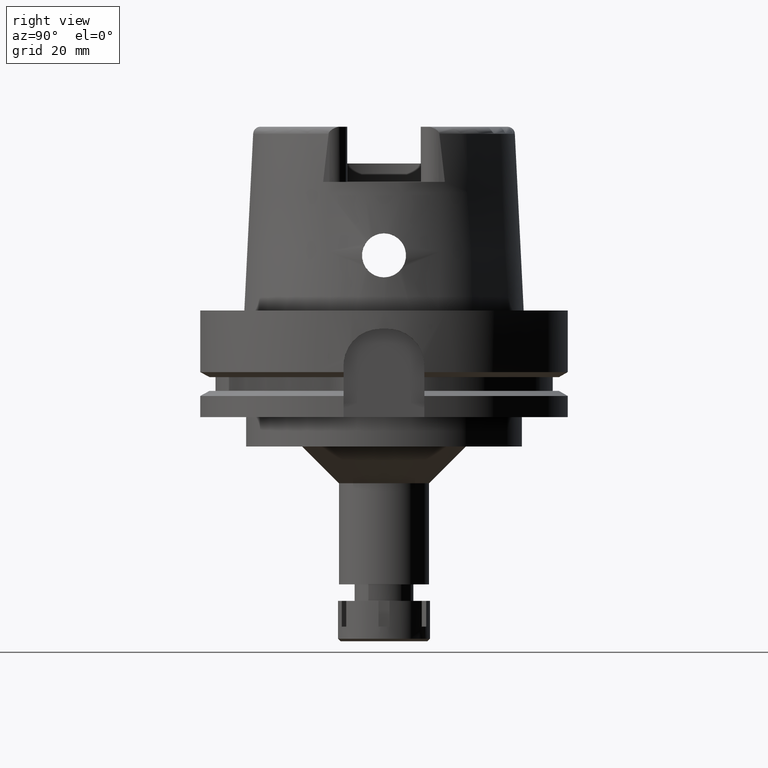
[diagram: clean part render]
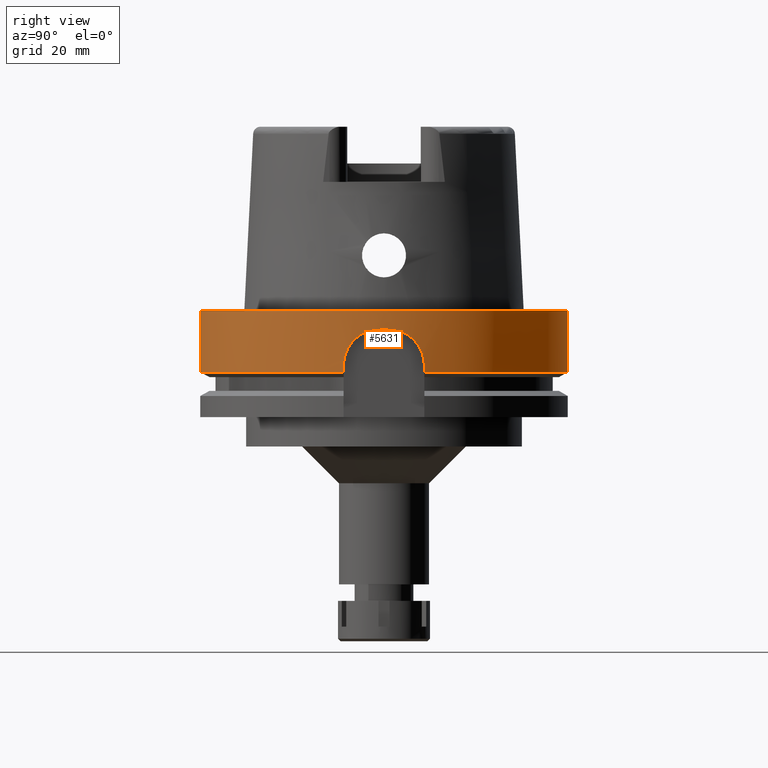
[diagram: same view with one face highlighted and labeled with its STEP entity id]
A machine part, right view. The second image highlights one B-rep face of the part: STEP entity #5631.
In plain terms, the highlighted cylindrical surface (partial cylindrical patch) has radius 50 mm, axis along (0, 0, 1).
Its self-contained STEP definition (entity closure, byte-faithful):
#10 = CARTESIAN_POINT ( 'NONE',  ( 48.82921954715000368, 10.75983619011536518, -12.79754628157335894 ) ) ;
#41 = CARTESIAN_POINT ( 'NONE',  ( 49.23299771986123119, 8.726026772560800282, -8.648997013885642460 ) ) ;
#92 = ORIENTED_EDGE ( 'NONE', *, *, #5779, .F. ) ;
#105 = CARTESIAN_POINT ( 'NONE',  ( 49.11738261311536036, 9.353230343437358485, -9.502385877849768292 ) ) ;
#136 = CARTESIAN_POINT ( 'NONE',  ( 49.49992508469743058, 7.052497954656518964, -7.037955893109728578 ) ) ;
#191 = CARTESIAN_POINT ( 'NONE',  ( 49.76366918900675529, 4.855655684506302805, -5.773191053492241487 ) ) ;
#198 = AXIS2_PLACEMENT_3D ( 'NONE', #1783, #3115, #244 ) ;
#201 = CARTESIAN_POINT ( 'NONE',  ( 49.58759982366983365, -6.408719095607612992, -6.588738575909347084 ) ) ;
#224 = CARTESIAN_POINT ( 'NONE',  ( 49.82788693964380400, 4.194804765862054197, -5.498442538428878201 ) ) ;
#233 = CARTESIAN_POINT ( 'NONE',  ( 49.89790848497199249, -3.199784537749019275, -5.239534891479165069 ) ) ;
#244 = DIRECTION ( 'NONE',  ( 0.9754998718605770724, 0.2199999999999950051, 0.0000000000000000000 ) ) ;
#289 = CARTESIAN_POINT ( 'NONE',  ( 49.35791660303255668, -7.987239866259919552, -7.845981917483436874 ) ) ;
#327 = CARTESIAN_POINT ( 'NONE',  ( 49.77254158568452169, -4.763810198036456001, -5.735344109339147955 ) ) ;
#332 = CIRCLE ( 'NONE', #5982, 50.00000000000000000 ) ;
#383 = FACE_OUTER_BOUND ( 'NONE', #4537, .T. ) ;
#385 = CARTESIAN_POINT ( 'NONE',  ( 48.94329665702162657, -10.22514325054338258, -11.14036017425553382 ) ) ;
#448 = ORIENTED_EDGE ( 'NONE', *, *, #5355, .T. ) ;
#569 = CARTESIAN_POINT ( 'NONE',  ( 49.33539249132311255, 8.125227190104144626, -7.983489403800811957 ) ) ;
#632 = CARTESIAN_POINT ( 'NONE',  ( 49.75952640838541186, 4.897981451215634330, -5.790964584015648953 ) ) ;
#690 = CARTESIAN_POINT ( 'NONE',  ( 49.54371460100801272, 6.738918810433680129, -6.810523375292460102 ) ) ;
#702 = CARTESIAN_POINT ( 'NONE',  ( 49.71309413255227128, -5.355949299624874094, -5.992577406261194284 ) ) ;
#752 = ORIENTED_EDGE ( 'NONE', *, *, #1081, .T. ) ;
#796 = CIRCLE ( 'NONE', #3166, 50.00000000000000000 ) ;
#812 = VERTEX_POINT ( 'NONE', #5986 ) ;
#821 = CARTESIAN_POINT ( 'NONE',  ( 49.37931658914904887, -7.853565475426175446, -7.717716395755881642 ) ) ;
#849 = CARTESIAN_POINT ( 'NONE',  ( 48.97189991242035489, -10.08743043220006541, -10.82570120580428075 ) ) ;
#906 = CARTESIAN_POINT ( 'NONE',  ( 49.03441380610062339, 9.779574402259541444, -10.20980581826310463 ) ) ;
#917 = B_SPLINE_CURVE_WITH_KNOTS ( 'NONE', 3,
 ( #1629, #2217, #5067, #233, #2667, #5479, #4017, #4108, #3517, #4486, #2128, #327, #3168, #5511, #6009, #702, #2610, #1748, #3078, #2153, #201, #5917, #5946, #2638, #1219, #1248, #1656, #3109, #3637, #1718, #2186, #4541, #5445, #821, #2701, #289, #5536, #1190, #4073, #4974, #3608, #2095, #3982, #5886, #1158, #3043, #5664, #3705, #2729, #2306, #1313, #2824, #1842, #1346, #5104, #849, #3670, #3203, #3233, #385, #3737, #1776, #2247, #2364, #5197, #2337, #1901 ),
 .UNSPECIFIED., .F., .F.,
 ( 4, 2, 2, 2, 1, 1, 1, 2, 2, 2, 2, 1, 1, 1, 1, 1, 2, 2, 2, 2, 2, 1, 1, 2, 2, 2, 2, 1, 1, 1, 1, 2, 2, 2, 2, 1, 1, 1, 2, 2, 2, 4 ),
 ( 0.0000000000000000000, 0.1250000000000547062, 0.1875000000000820455, 0.2187500000000957012, 0.2343750000001025569, 0.2421875000001059985, 0.2460937500001076639, 0.2480468750001084965, 0.2500000000001093015, 0.3125000000001356137, 0.3437500000001486589, 0.3593750000001550982, 0.3671875000001583178, 0.3710937500001598721, 0.3730468750001606493, 0.3740234375001609823, 0.3745117187501610934, 0.3750000000001611489, 0.4375000000001462719, 0.4687500000001388889, 0.4843750000001351697, 0.4921875000001333933, 0.4960937500001326717, 0.4980468750001322831, 0.5000000000001317835, 0.5625000000001225686, 0.5937500000001177947, 0.6093750000001153522, 0.6171875000001144640, 0.6210937500001140199, 0.6230468750001136868, 0.6240234375001134648, 0.6250000000001132427, 0.6875000000000941469, 0.7187500000000843769, 0.7343750000000796030, 0.7421875000000770495, 0.7460937500000754952, 0.7480468750000750511, 0.7500000000000744960, 0.8750000000000373035, 1.000000000000000000 ),
 .UNSPECIFIED. ) ;
#965 = CARTESIAN_POINT ( 'NONE',  ( 48.93429888170540920, 10.26814284759844220, -11.24478472722094757 ) ) ;
#974 = EDGE_CURVE ( 'NONE', #4688, #3390, #1420, .T. ) ;
#996 = CARTESIAN_POINT ( 'NONE',  ( 48.87666725700501047, 10.54056621383486281, -11.99911831877175139 ) ) ;
#1081 = EDGE_CURVE ( 'NONE', #3199, #3390, #332, .T. ) ;
#1153 = CARTESIAN_POINT ( 'NONE',  ( 49.87789850174181083, 3.541990359286611323, -5.306214434618421016 ) ) ;
#1158 = CARTESIAN_POINT ( 'NONE',  ( 49.14945669594243327, -9.183547678990699126, -9.252215372757715883 ) ) ;
#1160 = EDGE_CURVE ( 'NONE', #3067, #3199, #5573, .T. ) ;
#1179 = ORIENTED_EDGE ( 'NONE', *, *, #4431, .F. ) ;
#1190 = CARTESIAN_POINT ( 'NONE',  ( 49.34941881495895188, -8.039583302290104427, -7.897571945633556467 ) ) ;
#1219 = CARTESIAN_POINT ( 'NONE',  ( 49.57149909569761803, -6.531957123684160038, -6.669486300008753865 ) ) ;
#1220 = CIRCLE ( 'NONE', #4994, 49.99999999999999289 ) ;
#1248 = CARTESIAN_POINT ( 'NONE',  ( 49.57087334706817217, -6.536705062054668502, -6.672641164220197041 ) ) ;
#1295 = VECTOR ( 'NONE', #2637, 1000.000000000000000 ) ;
#1300 = EDGE_CURVE ( 'NONE', #1743, #4900, #2825, .T. ) ;
#1313 = CARTESIAN_POINT ( 'NONE',  ( 49.12652834683019165, -9.305064580473352720, -9.429907178026939008 ) ) ;
#1346 = CARTESIAN_POINT ( 'NONE',  ( 49.00703936164341457, -9.915805224169615073, -10.46838211145954212 ) ) ;
#1397 = EDGE_CURVE ( 'NONE', #812, #5623, #1220, .T. ) ;
#1420 = LINE ( 'NONE', #1942, #5887 ) ;
#1437 = CARTESIAN_POINT ( 'NONE',  ( 49.07620269537731872, 9.567250132680538144, -9.841552420757226471 ) ) ;
#1438 = ORIENTED_EDGE ( 'NONE', *, *, #1300, .F. ) ;
#1498 = CARTESIAN_POINT ( 'NONE',  ( 49.32012954644553560, 8.217577496032175688, -8.078226304427401416 ) ) ;
#1522 = ORIENTED_EDGE ( 'NONE', *, *, #2887, .F. ) ;
#1530 = CARTESIAN_POINT ( 'NONE',  ( 49.64261264179660316, 5.973905458168986549, -6.318465147865267362 ) ) ;
#1584 = CARTESIAN_POINT ( 'NONE',  ( 49.73075094203353785, 5.182146799767212819, -5.916184993464768560 ) ) ;
#1619 = CARTESIAN_POINT ( 'NONE',  ( 49.55245082455104466, 6.674661322499884086, -6.765991377234958470 ) ) ;
#1627 = CARTESIAN_POINT ( 'NONE',  ( 48.77499359303000404, 11.00000000000000000, -16.75240473580999989 ) ) ;
#1629 = CARTESIAN_POINT ( 'NONE',  ( 49.98999899980000095, -1.000000000000000000, -5.000000000000000000 ) ) ;
#1633 = ORIENTED_EDGE ( 'NONE', *, *, #1160, .T. ) ;
#1656 = CARTESIAN_POINT ( 'NONE',  ( 49.57040045882908430, -6.540290381865477620, -6.675026460230552239 ) ) ;
#1718 = CARTESIAN_POINT ( 'NONE',  ( 49.46601972544213055, -7.286422982626437062, -7.221328882493811108 ) ) ;
#1743 = VERTEX_POINT ( 'NONE', #2818 ) ;
#1746 = CYLINDRICAL_SURFACE ( 'NONE', #4566, 50.00000000000000000 ) ;
#1748 = CARTESIAN_POINT ( 'NONE',  ( 49.64606154941158422, -5.939994727315271561, -6.303648630033259259 ) ) ;
#1776 = CARTESIAN_POINT ( 'NONE',  ( 48.94115669047643991, -10.23538666184986745, -11.16493166615088128 ) ) ;
#1777 = CARTESIAN_POINT ( 'NONE',  ( 0.0000000000000000000, -50.00000000000000000, -9.947598300640998705E-14 ) ) ;
#1783 = CARTESIAN_POINT ( 'NONE',  ( 0.0000000000000000000, 0.0000000000000000000, -16.75240473580999989 ) ) ;
#1842 = CARTESIAN_POINT ( 'NONE',  ( 49.05344903501629972, -9.684628780970706785, -10.03151966200773515 ) ) ;
#1862 = CARTESIAN_POINT ( 'NONE',  ( 48.98846021605768897, 10.00806932560145412, -10.64543515843593013 ) ) ;
#1896 = CARTESIAN_POINT ( 'NONE',  ( 48.93598020401333315, 10.26011734546398557, -11.22503770394455103 ) ) ;
#1901 = CARTESIAN_POINT ( 'NONE',  ( 48.77499359303000404, -11.00000000000000000, -15.00000000000000000 ) ) ;
#1931 = CARTESIAN_POINT ( 'NONE',  ( 49.25260993374171647, 8.614719689117640300, -8.515406021817403470 ) ) ;
#1942 = CARTESIAN_POINT ( 'NONE',  ( 48.77499359303000404, -11.00000000000000000, -15.00000000000000000 ) ) ;
#1962 = CARTESIAN_POINT ( 'NONE',  ( 0.0000000000000000000, 0.0000000000000000000, -5.000000000000000000 ) ) ;
#1994 = CARTESIAN_POINT ( 'NONE',  ( 49.51629051456199448, 6.936828981543395223, -6.952051641262945836 ) ) ;
#2052 = CARTESIAN_POINT ( 'NONE',  ( 49.53730081050343870, 6.785617087362377120, -6.843377678004913811 ) ) ;
#2095 = CARTESIAN_POINT ( 'NONE',  ( 49.20083479257436210, -8.905580928239203331, -8.873937112411040218 ) ) ;
#2117 = CARTESIAN_POINT ( 'NONE',  ( 49.56465878532662828, 6.583661637914017817, -6.704053732360352846 ) ) ;
#2128 = CARTESIAN_POINT ( 'NONE',  ( 49.77539939311712658, -4.733884703482160283, -5.723205530362952764 ) ) ;
#2153 = CARTESIAN_POINT ( 'NONE',  ( 49.60456847913140876, -6.276495881884425643, -6.504559945454161607 ) ) ;
#2186 = CARTESIAN_POINT ( 'NONE',  ( 49.44511499004464383, -7.427734382393101242, -7.336799823249186225 ) ) ;
#2217 = CARTESIAN_POINT ( 'NONE',  ( 49.97778063401836590, -1.610796093134402085, -5.000000000000000888 ) ) ;
#2247 = CARTESIAN_POINT ( 'NONE',  ( 48.88519502553334917, -10.50307910322530169, -11.81153760182712986 ) ) ;
#2301 = CARTESIAN_POINT ( 'NONE',  ( 49.98999899980000095, 1.000000000000000000, -5.000000000000000000 ) ) ;
#2306 = CARTESIAN_POINT ( 'NONE',  ( 49.12673216678786758, -9.303988283098760803, -9.428304296159257802 ) ) ;
#2334 = CARTESIAN_POINT ( 'NONE',  ( 48.77499359303000404, 11.00000000000000000, -15.00000000000000000 ) ) ;
#2337 = CARTESIAN_POINT ( 'NONE',  ( 48.77499359303000404, -11.00000000000000355, -14.38068224977906517 ) ) ;
#2364 = CARTESIAN_POINT ( 'NONE',  ( 48.84386948834458053, -10.69389081096750260, -12.45904651558344511 ) ) ;
#2397 = CARTESIAN_POINT ( 'NONE',  ( 48.78855008155999684, 10.94315158522391229, -13.75318168442756495 ) ) ;
#2427 = CARTESIAN_POINT ( 'NONE',  ( 49.10521632384108415, 9.416985088991930652, -9.600203520156419756 ) ) ;
#2456 = CARTESIAN_POINT ( 'NONE',  ( 49.31163041524143864, 8.268462750859530530, -8.131826040952867984 ) ) ;
#2483 = CARTESIAN_POINT ( 'NONE',  ( 49.60570755063874770, 6.274389632616514945, -6.496131709447807268 ) ) ;
#2516 = CARTESIAN_POINT ( 'NONE',  ( 49.95279426869960560, 2.252537317137854878, -5.057045517378476518 ) ) ;
#2528 = ORIENTED_EDGE ( 'NONE', *, *, #1397, .T. ) ;
#2551 = CARTESIAN_POINT ( 'NONE',  ( 0.0000000000000000000, 0.0000000000000000000, -1.705302565823999875E-13 ) ) ;
#2570 = CARTESIAN_POINT ( 'NONE',  ( 49.76433396079047355, 4.848838071048477083, -5.770343221661185851 ) ) ;
#2610 = CARTESIAN_POINT ( 'NONE',  ( 49.66347834602519384, -5.792355285894891459, -6.221599243909516019 ) ) ;
#2637 = DIRECTION ( 'NONE',  ( 5.027793947017000297E-13, 7.095676941355000738E-14, 1.000000000000000000 ) ) ;
#2638 = CARTESIAN_POINT ( 'NONE',  ( 49.57243707542811961, -6.524835980184488626, -6.664758900672351771 ) ) ;
#2667 = CARTESIAN_POINT ( 'NONE',  ( 49.87638485377108566, -3.521039353281770534, -5.317199975505263687 ) ) ;
#2701 = CARTESIAN_POINT ( 'NONE',  ( 49.36960747820067041, -7.914659501722111301, -7.775510628595118767 ) ) ;
#2729 = CARTESIAN_POINT ( 'NONE',  ( 49.12753399661131937, -9.299754034109385614, -9.421998799271925407 ) ) ;
#2760 = B_SPLINE_CURVE_WITH_KNOTS ( 'NONE', 3,
 ( #2334, #3327, #2397, #10, #3356, #996, #3258, #6131, #2883, #5224, #965, #1896, #4786, #4226, #1862, #906, #4695, #1437, #3759, #2427, #3852, #105, #4817, #3792, #4322, #4290, #2850, #41, #1931, #5754, #3823, #2456, #1498, #3389, #569, #3734, #5628, #2784, #5658, #3294, #136, #1994, #2052, #690, #1619, #3886, #3915, #5786, #3007, #2117, #4477, #4932, #2483, #1530, #3942, #5843, #1584, #3480, #5911, #632, #4847, #191, #2570, #224, #1153, #2516, #5877, #5377 ),
 .UNSPECIFIED., .F., .F.,
 ( 4, 2, 2, 1, 1, 1, 1, 2, 2, 2, 2, 1, 1, 1, 1, 2, 2, 2, 2, 2, 1, 1, 1, 2, 2, 2, 2, 2, 1, 1, 1, 1, 2, 2, 2, 2, 1, 1, 1, 2, 2, 2, 4 ),
 ( 0.0000000000000000000, 0.1250000000000235367, 0.1875000000000351386, 0.2187500000000409395, 0.2343750000000437983, 0.2421875000000450195, 0.2460937500000456024, 0.2480468750000459355, 0.2500000000000462408, 0.3125000000000494049, 0.3437500000000509592, 0.3593750000000516809, 0.3671875000000519584, 0.3710937500000521805, 0.3730468750000520695, 0.3740234375000521250, 0.3750000000000521250, 0.4375000000000515699, 0.4687500000000511258, 0.4843750000000507372, 0.4921875000000503486, 0.4960937500000501821, 0.4980468750000499600, 0.4990234375000498490, 0.5000000000000496270, 0.5625000000000467404, 0.5937500000000452971, 0.6093750000000445199, 0.6171875000000440759, 0.6210937500000437428, 0.6230468750000437428, 0.6240234375000436318, 0.6245117187500435207, 0.6250000000000434097, 0.6875000000000368594, 0.7187500000000334177, 0.7343750000000316414, 0.7421875000000307532, 0.7460937500000300870, 0.7480468750000298650, 0.7500000000000295319, 0.8750000000000147660, 1.000000000000000000 ),
 .UNSPECIFIED. ) ;
#2784 = CARTESIAN_POINT ( 'NONE',  ( 49.33967437787097765, 8.099170895995877473, -7.957143298620345639 ) ) ;
#2818 = CARTESIAN_POINT ( 'NONE',  ( 0.0000000000000000000, 50.00000000000000000, -9.947598300640998705E-14 ) ) ;
#2824 = CARTESIAN_POINT ( 'NONE',  ( 49.08792409585262106, -9.508841119533602892, -9.734110339608731621 ) ) ;
#2825 = LINE ( 'NONE', #5258, #4396 ) ;
#2850 = CARTESIAN_POINT ( 'NONE',  ( 49.17823059288249965, 9.031245555718193430, -9.032922884393439489 ) ) ;
#2883 = CARTESIAN_POINT ( 'NONE',  ( 48.92599487054287977, 10.30773305281254437, -11.34359841650256584 ) ) ;
#2887 = EDGE_CURVE ( 'NONE', #812, #4688, #917, .T. ) ;
#3000 = CARTESIAN_POINT ( 'NONE',  ( 0.0000000000000000000, -50.00000000000000000, -16.75240473580999989 ) ) ;
#3007 = CARTESIAN_POINT ( 'NONE',  ( 49.56421814673613113, 6.586977463772232255, -6.706285795251838877 ) ) ;
#3043 = CARTESIAN_POINT ( 'NONE',  ( 49.13738955829268207, -9.247625527853630345, -9.345054837420898153 ) ) ;
#3067 = VERTEX_POINT ( 'NONE', #4297 ) ;
#3078 = CARTESIAN_POINT ( 'NONE',  ( 49.61861905283427632, -6.163919114827492329, -6.436037240886931521 ) ) ;
#3109 = CARTESIAN_POINT ( 'NONE',  ( 49.55059849390345761, -6.690366423050348565, -6.774932701749184716 ) ) ;
#3115 = DIRECTION ( 'NONE',  ( 0.0000000000000000000, 0.0000000000000000000, 1.000000000000000000 ) ) ;
#3166 = AXIS2_PLACEMENT_3D ( 'NONE', #2551, #3519, #3666 ) ;
#3168 = CARTESIAN_POINT ( 'NONE',  ( 49.77063035946058989, -4.783756334672720101, -5.743472358436772396 ) ) ;
#3199 = VERTEX_POINT ( 'NONE', #3000 ) ;
#3203 = CARTESIAN_POINT ( 'NONE',  ( 48.95093186330230850, -10.18854570030520712, -11.05372032049364783 ) ) ;
#3205 = DIRECTION ( 'NONE',  ( 0.0000000000000000000, -1.000000000000000000, 0.0000000000000000000 ) ) ;
#3233 = CARTESIAN_POINT ( 'NONE',  ( 48.94556546865670299, -10.21427775014570294, -11.11442385370509101 ) ) ;
#3258 = CARTESIAN_POINT ( 'NONE',  ( 48.89318922740091722, 10.46321174148005184, -11.76002577741417277 ) ) ;
#3294 = CARTESIAN_POINT ( 'NONE',  ( 49.44375309739283608, 7.439114077986243245, -7.341976671788654762 ) ) ;
#3327 = CARTESIAN_POINT ( 'NONE',  ( 48.77499359302999693, 11.00000000000000355, -14.38521652262686601 ) ) ;
#3356 = CARTESIAN_POINT ( 'NONE',  ( 48.84616515781250712, 10.68241940062164197, -12.47779209190444227 ) ) ;
#3389 = CARTESIAN_POINT ( 'NONE',  ( 49.33026775110006668, 8.156328197389637324, -8.015153028207162578 ) ) ;
#3390 = VERTEX_POINT ( 'NONE', #5495 ) ;
#3399 = DIRECTION ( 'NONE',  ( -5.027793947017000297E-13, 6.690209687562999968E-14, -1.000000000000000000 ) ) ;
#3403 = VECTOR ( 'NONE', #6011, 1000.000000000000000 ) ;
#3480 = CARTESIAN_POINT ( 'NONE',  ( 49.74158644361714465, 5.077591167373751269, -5.868562110990998448 ) ) ;
#3517 = CARTESIAN_POINT ( 'NONE',  ( 49.79496148188335525, -4.524119908410882296, -5.640864352015519501 ) ) ;
#3519 = DIRECTION ( 'NONE',  ( 0.0000000000000000000, 0.0000000000000000000, -1.000000000000000000 ) ) ;
#3608 = CARTESIAN_POINT ( 'NONE',  ( 49.25584701921103203, -8.598114202904573844, -8.490308315891113011 ) ) ;
#3635 = DIRECTION ( 'NONE',  ( 0.0000000000000000000, 1.000000000000000000, 0.0000000000000000000 ) ) ;
#3637 = CARTESIAN_POINT ( 'NONE',  ( 49.52208562879255993, -6.899165737986185043, -6.918713179261289703 ) ) ;
#3648 = VERTEX_POINT ( 'NONE', #5770 ) ;
#3662 = CARTESIAN_POINT ( 'NONE',  ( 1.065814103639999922E-14, 50.00000000000000000, -16.75240473580999989 ) ) ;
#3666 = DIRECTION ( 'NONE',  ( 0.0000000000000000000, 1.000000000000000000, 0.0000000000000000000 ) ) ;
#3670 = CARTESIAN_POINT ( 'NONE',  ( 48.96195465591509333, -10.13554735585638866, -10.93158569883593856 ) ) ;
#3705 = CARTESIAN_POINT ( 'NONE',  ( 49.12874083965876082, -9.293379704256626184, -9.412518009623642712 ) ) ;
#3734 = CARTESIAN_POINT ( 'NONE',  ( 49.33760073096777887, 8.111795515398533496, -7.969892940943809734 ) ) ;
#3737 = CARTESIAN_POINT ( 'NONE',  ( 48.94179102077257681, -10.23235100867842817, -11.15763322546204961 ) ) ;
#3759 = CARTESIAN_POINT ( 'NONE',  ( 49.08932901362602763, 9.499688724410358276, -9.730390876663699729 ) ) ;
#3792 = CARTESIAN_POINT ( 'NONE',  ( 49.12031091275442662, 9.337831460803522887, -9.479076365828321471 ) ) ;
#3823 = CARTESIAN_POINT ( 'NONE',  ( 49.29488649749973916, 8.368132257020208797, -8.238337171041360207 ) ) ;
#3840 = ORIENTED_EDGE ( 'NONE', *, *, #5574, .T. ) ;
#3852 = CARTESIAN_POINT ( 'NONE',  ( 49.11330329701317510, 9.374647486752255787, -9.535007043522169212 ) ) ;
#3886 = CARTESIAN_POINT ( 'NONE',  ( 49.55659782076907760, 6.643979286265754958, -6.744913469583069698 ) ) ;
#3915 = CARTESIAN_POINT ( 'NONE',  ( 49.56104903080489521, 6.610758073233084176, -6.722342716211076485 ) ) ;
#3942 = CARTESIAN_POINT ( 'NONE',  ( 49.69262999835451922, 5.536760002874279607, -6.086807283569568128 ) ) ;
#3982 = CARTESIAN_POINT ( 'NONE',  ( 49.18389627428688016, -8.998205302605107647, -8.995919731045715295 ) ) ;
#4017 = CARTESIAN_POINT ( 'NONE',  ( 49.82640108962974068, -4.163483767711359640, -5.512046149402117123 ) ) ;
#4040 = LINE ( 'NONE', #1627, #1295 ) ;
#4060 = CIRCLE ( 'NONE', #198, 50.00000000000000711 ) ;
#4073 = CARTESIAN_POINT ( 'NONE',  ( 49.34747915252611961, -8.051483137638498988, -7.909389815655689659 ) ) ;
#4108 = CARTESIAN_POINT ( 'NONE',  ( 49.80563403173604797, -4.403976700114187182, -5.596800168028341460 ) ) ;
#4135 = DIRECTION ( 'NONE',  ( 0.0000000000000000000, 0.0000000000000000000, 1.000000000000000000 ) ) ;
#4145 = CARTESIAN_POINT ( 'NONE',  ( 48.77499359303000404, 11.00000000000000000, -15.00000000000000000 ) ) ;
#4226 = CARTESIAN_POINT ( 'NONE',  ( 48.96131872027004306, 10.13907694353620670, -10.92987845146373971 ) ) ;
#4264 = DIRECTION ( 'NONE',  ( 0.0000000000000000000, -2.969006079282000197E-14, -1.000000000000000000 ) ) ;
#4290 = CARTESIAN_POINT ( 'NONE',  ( 49.14714519444694218, 9.196547181799012094, -9.266214773255327941 ) ) ;
#4297 = CARTESIAN_POINT ( 'NONE',  ( 0.0000000000000000000, -50.00000000000000000, -1.705302565823999875E-13 ) ) ;
#4322 = CARTESIAN_POINT ( 'NONE',  ( 49.12108488776658533, 9.333757854650295727, -9.472930741337057370 ) ) ;
#4396 = VECTOR ( 'NONE', #4264, 1000.000000000000000 ) ;
#4431 = EDGE_CURVE ( 'NONE', #3648, #5499, #4040, .T. ) ;
#4477 = CARTESIAN_POINT ( 'NONE',  ( 49.56495139274345973, 6.581458854535538805, -6.702571553944941307 ) ) ;
#4478 = ORIENTED_EDGE ( 'NONE', *, *, #974, .F. ) ;
#4486 = CARTESIAN_POINT ( 'NONE',  ( 49.78200438713673748, -4.664015983668500454, -5.695258275506330570 ) ) ;
#4537 = EDGE_LOOP ( 'NONE', ( #92, #1179, #448, #1438, #3840, #1633, #752, #4478, #1522, #2528 ) ) ;
#4541 = CARTESIAN_POINT ( 'NONE',  ( 49.41043373552744100, -7.654807288976607005, -7.535173042429461177 ) ) ;
#4566 = AXIS2_PLACEMENT_3D ( 'NONE', #6101, #5417, #3635 ) ;
#4688 = VERTEX_POINT ( 'NONE', #5103 ) ;
#4695 = CARTESIAN_POINT ( 'NONE',  ( 49.05060522717516136, 9.698079767000114870, -10.06311500825218097 ) ) ;
#4786 = CARTESIAN_POINT ( 'NONE',  ( 48.93693247836249327, 10.25556988557325333, -11.21390535866930627 ) ) ;
#4817 = CARTESIAN_POINT ( 'NONE',  ( 49.11913856919834842, 9.343998149675485365, -9.488400765537056358 ) ) ;
#4847 = CARTESIAN_POINT ( 'NONE',  ( 49.76201624885211316, 4.872571547791973323, -5.780278003103703988 ) ) ;
#4900 = VERTEX_POINT ( 'NONE', #3662 ) ;
#4932 = CARTESIAN_POINT ( 'NONE',  ( 49.56492613771108324, 6.581649585374575118, -6.702699466482577861 ) ) ;
#4974 = CARTESIAN_POINT ( 'NONE',  ( 49.29811739933440862, -8.353680587870654151, -8.210697975462496245 ) ) ;
#4994 = AXIS2_PLACEMENT_3D ( 'NONE', #1962, #6105, #5634 ) ;
#5067 = CARTESIAN_POINT ( 'NONE',  ( 49.95323070958863809, -2.241696559899848396, -5.056101657708779840 ) ) ;
#5103 = CARTESIAN_POINT ( 'NONE',  ( 48.77499359303000404, -11.00000000000000000, -15.00000000000000000 ) ) ;
#5104 = CARTESIAN_POINT ( 'NONE',  ( 48.99245329016601858, -9.987451611340597779, -10.61247647675704187 ) ) ;
#5197 = CARTESIAN_POINT ( 'NONE',  ( 48.78876877209291507, -10.94230794098812432, -13.74362566426510845 ) ) ;
#5224 = CARTESIAN_POINT ( 'NONE',  ( 48.93178682731227269, 10.28012907017572530, -11.27441299873827241 ) ) ;
#5258 = CARTESIAN_POINT ( 'NONE',  ( 0.0000000000000000000, 50.00000000000000000, -9.947598300640998705E-14 ) ) ;
#5355 = EDGE_CURVE ( 'NONE', #3648, #4900, #4060, .T. ) ;
#5377 = CARTESIAN_POINT ( 'NONE',  ( 49.98999899980000095, 1.000000000000000000, -5.000000000000000000 ) ) ;
#5417 = DIRECTION ( 'NONE',  ( 0.0000000000000000000, 0.0000000000000000000, 1.000000000000000000 ) ) ;
#5445 = CARTESIAN_POINT ( 'NONE',  ( 49.39831929211815975, -7.733006003696045738, -7.605496160757073909 ) ) ;
#5479 = CARTESIAN_POINT ( 'NONE',  ( 49.83947507247669506, -4.002880765826849263, -5.460043446639034848 ) ) ;
#5495 = CARTESIAN_POINT ( 'NONE',  ( 48.77499359303000404, -11.00000000000000000, -16.75240473580999989 ) ) ;
#5499 = VERTEX_POINT ( 'NONE', #4145 ) ;
#5511 = CARTESIAN_POINT ( 'NONE',  ( 49.76952421327651876, -4.795256601328813595, -5.748183389004262622 ) ) ;
#5536 = CARTESIAN_POINT ( 'NONE',  ( 49.35282831816159899, -8.018611430875898449, -7.876846841481550676 ) ) ;
#5573 = LINE ( 'NONE', #1777, #3403 ) ;
#5574 = EDGE_CURVE ( 'NONE', #1743, #3067, #796, .T. ) ;
#5623 = VERTEX_POINT ( 'NONE', #2301 ) ;
#5628 = CARTESIAN_POINT ( 'NONE',  ( 49.33907554015452490, 8.102818183705464250, -7.960822877362903505 ) ) ;
#5631 = ADVANCED_FACE ( 'NONE', ( #383 ), #1746, .T. ) ;
#5634 = DIRECTION ( 'NONE',  ( 0.9997999799959990108, -0.02000000000000000389, 0.0000000000000000000 ) ) ;
#5658 = CARTESIAN_POINT ( 'NONE',  ( 49.39687084224197378, 7.750484909746393924, -7.606203861228603813 ) ) ;
#5664 = CARTESIAN_POINT ( 'NONE',  ( 49.13158549495545913, -9.278344975082021051, -9.390238822040487321 ) ) ;
#5754 = CARTESIAN_POINT ( 'NONE',  ( 49.28406301189381367, 8.431777246677983229, -8.308425767639658233 ) ) ;
#5770 = CARTESIAN_POINT ( 'NONE',  ( 48.77499359303000404, 11.00000000000000000, -16.75240473580999989 ) ) ;
#5779 = EDGE_CURVE ( 'NONE', #5499, #5623, #2760, .T. ) ;
#5786 = CARTESIAN_POINT ( 'NONE',  ( 49.56317789776817051, 6.594795876132679702, -6.711555609120460453 ) ) ;
#5843 = CARTESIAN_POINT ( 'NONE',  ( 49.70841240384402937, 5.393288029255668192, -6.015390492457113325 ) ) ;
#5877 = CARTESIAN_POINT ( 'NONE',  ( 49.97767847355936510, 1.615903094502928017, -4.999999999999997335 ) ) ;
#5886 = CARTESIAN_POINT ( 'NONE',  ( 49.16058683274274443, -9.123964299991092375, -9.168510392949592358 ) ) ;
#5887 = VECTOR ( 'NONE', #3399, 1000.000000000000000 ) ;
#5911 = CARTESIAN_POINT ( 'NONE',  ( 49.75364376898676966, 4.957522075173285359, -5.816295685548393379 ) ) ;
#5917 = CARTESIAN_POINT ( 'NONE',  ( 49.57897141607031699, -6.475026184606604396, -6.631906487602107880 ) ) ;
#5946 = CARTESIAN_POINT ( 'NONE',  ( 49.57462119230338971, -6.508225378510793746, -6.653762543129513318 ) ) ;
#5947 = CARTESIAN_POINT ( 'NONE',  ( 0.0000000000000000000, 0.0000000000000000000, -16.75240473580999989 ) ) ;
#5982 = AXIS2_PLACEMENT_3D ( 'NONE', #5947, #4135, #3205 ) ;
#5986 = CARTESIAN_POINT ( 'NONE',  ( 49.98999899980000095, -1.000000000000000000, -5.000000000000000000 ) ) ;
#6009 = CARTESIAN_POINT ( 'NONE',  ( 49.74265851915199477, -5.073760453784710300, -5.862727553914151457 ) ) ;
#6011 = DIRECTION ( 'NONE',  ( 0.0000000000000000000, 2.969006079282000197E-14, -1.000000000000000000 ) ) ;
#6101 = CARTESIAN_POINT ( 'NONE',  ( 0.0000000000000000000, 0.0000000000000000000, -90.70000000000000284 ) ) ;
#6105 = DIRECTION ( 'NONE',  ( 0.0000000000000000000, 0.0000000000000000000, 1.000000000000000000 ) ) ;
#6131 = CARTESIAN_POINT ( 'NONE',  ( 48.91468897092898516, 10.36148835402886625, -11.48216946339821121 ) ) ;